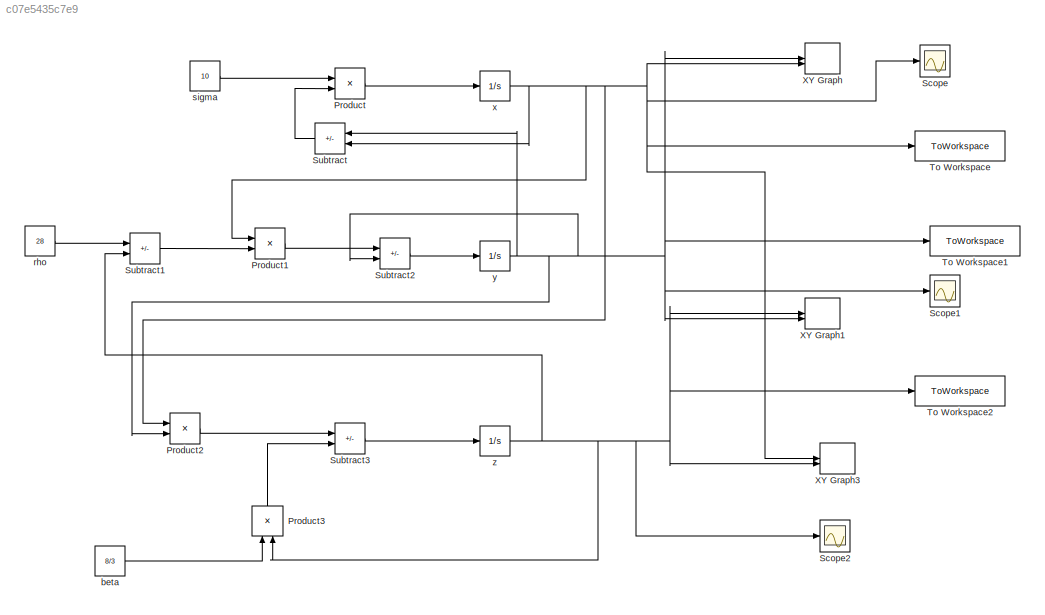
MODEL slx_c07e5435c7e9
KIND model
CONFIG AbsTol = auto
CONFIG EnableMultiTasking = off
CONFIG FixedStep = 0.001
CONFIG MaxStep = auto
CONFIG MinStep = auto
CONFIG RelTol = 1e-3
CONFIG SampleTimeConstraint = Unconstrained
CONFIG SolverName = FixedStepAuto
CONFIG StartTime = 0.0
CONFIG StopTime = 25.0
BLOCK [Product] Product
BLOCK [Product] Product1
BLOCK [Product] Product2
BLOCK [Product] Product3
  NameLocation = right
BLOCK [Scope] Scope
  Floating = off
  NumInputPorts = 1
  ScopeSpecificationString = Simulink.scopes.TimeScopeBlockCfg('CurrentConfiguration', extmgr.ConfigurationSet(extmgr.Configuration('Core','General UI',true),extmgr.Configuration('Core','Source UI',true),extmgr.Configuration('Sources','WiredSimulink',true),extmgr.Configuration('Visuals','Time Domain',true,'SerializedDisplays',{struct('MinYLimReal','-23.02709','MaxYLimReal','24.30224','YLabelReal','','MinYLimMag','0.00000','Ma...<+1327ch>
BLOCK [Scope] Scope1
  Floating = off
  NumInputPorts = 1
  ScopeSpecificationString = Simulink.scopes.TimeScopeBlockCfg('CurrentConfiguration', extmgr.ConfigurationSet(extmgr.Configuration('Core','General UI',true),extmgr.Configuration('Core','Source UI',true),extmgr.Configuration('Sources','WiredSimulink',true,'DataLoggingVariableName','ScopeData1'),extmgr.Configuration('Visuals','Time Domain',true,'SerializedDisplays',{struct('MinYLimReal','-31.2216','MaxYLimReal','33.67295','YLa...<+1364ch>
BLOCK [Scope] Scope2
  Floating = off
  NumInputPorts = 1
  ScopeSpecificationString = Simulink.scopes.TimeScopeBlockCfg('CurrentConfiguration', extmgr.ConfigurationSet(extmgr.Configuration('Core','General UI',true),extmgr.Configuration('Core','Source UI',true),extmgr.Configuration('Sources','WiredSimulink',true,'DataLoggingVariableName','ScopeData2'),extmgr.Configuration('Visuals','Time Domain',true,'SerializedDisplays',{struct('MinYLimReal','-4.89815','MaxYLimReal','53.70013','YLa...<+1364ch>
BLOCK [Sum] Subtract
  IconShape = rectangular
  Inputs = +-
  NameLocation = top
BLOCK [Sum] Subtract1
  IconShape = rectangular
  Inputs = +-
BLOCK [Sum] Subtract2
  IconShape = rectangular
  Inputs = +-
BLOCK [Sum] Subtract3
  IconShape = rectangular
  Inputs = +-
BLOCK [ToWorkspace] To Workspace
  FixptAsFi = on
  MaxDataPoints = inf
  SampleTime = -1
  VariableName = simout
BLOCK [ToWorkspace] To Workspace1
  FixptAsFi = on
  MaxDataPoints = inf
  SampleTime = -1
  VariableName = simout1
BLOCK [ToWorkspace] To Workspace2
  FixptAsFi = on
  MaxDataPoints = inf
  SampleTime = -1
  VariableName = simout2
BLOCK [Record] XY Graph
  CompatibilityTag = XY
  FileSettingsInternal = {"entries":[{"content":{"excelSettings":{"content":{},"type":"Streamout.ExcelSettings"}},"type":"Streamout.FileSettingStorage","uuid":"13992367-6df8-4872-bd32-34eabf95292b"}],"packageUris":["http://schema.mathworks.com/mf0/streamout_blocks/R2020a"],"version":"1.0"}
  Layout = [1 1]
  SignalsInternal = {"entries":[{"content":{"signals":[{"content":{"blockPath":["lista2_lorenzslx/XY Graph"],"channel":[],"dimensions":[1],"domain":"lista2_lorenzslx/XY Graph","lineColor":"#a2142f","plots":[1],"port":1,"sid":[""],"signalID":964,"signalName":"y"},"type":"RecordBlkView.Signal","uuid":"b91385a9-bdab-431e-ae58-12bcd1510d2c"},{"content":{"blockPath":["lista2_lorenzslx/XY Graph"],"channel":[],"dimensions":...<+381ch>
  VisualizationBindings = {"xyplotplugin":{"info":[{"series":[{"bindingParametersList":[{"parameter":"X-Axis","signalID":964,"signalName":"y"},{"parameter":"Y-Axis","signalID":968,"signalName":"x"}],"seriesID":43538}],"subplotID":1}]}}
BLOCK [Record] XY Graph1
  CompatibilityTag = XY
  FileSettingsInternal = {"entries":[{"content":{"excelSettings":{"content":{},"type":"Streamout.ExcelSettings"}},"type":"Streamout.FileSettingStorage","uuid":"a5b5386f-6187-4de5-89fa-c94a53f00e27"}],"packageUris":["http://schema.mathworks.com/mf0/streamout_blocks/R2020a"],"version":"1.0"}
  Layout = [1 1]
  SignalsInternal = {"entries":[{"content":{"signals":[{"content":{"blockPath":["lista2_lorenzslx/XY Graph1"],"channel":[],"dimensions":[1],"domain":"lista2_lorenzslx/XY Graph1","lineColor":"#a2142f","plots":[1],"port":1,"sid":[""],"signalID":972,"signalName":"z"},"type":"RecordBlkView.Signal","uuid":"de59c627-7218-433f-81bb-eecf63fc6559"},{"content":{"blockPath":["lista2_lorenzslx/XY Graph1"],"channel":[],"dimension...<+385ch>
  VisualizationBindings = {"xyplotplugin":{"info":[{"series":[{"bindingParametersList":[{"parameter":"X-Axis","signalID":972,"signalName":"z"},{"parameter":"Y-Axis","signalID":976,"signalName":"y"}],"seriesID":10459}],"subplotID":1}]}}
BLOCK [Record] XY Graph3
  CompatibilityTag = XY
  FileSettingsInternal = {"entries":[{"content":{"excelSettings":{"content":{},"type":"Streamout.ExcelSettings"}},"type":"Streamout.FileSettingStorage","uuid":"8b067cb2-b9e7-4c6e-a722-a4a4f1857175"}],"packageUris":["http://schema.mathworks.com/mf0/streamout_blocks/R2020a"],"version":"1.0"}
  Layout = [1 1]
  SignalsInternal = {"entries":[{"content":{"signals":[{"content":{"blockPath":["lista2_lorenzslx/XY Graph3"],"channel":[],"dimensions":[1],"domain":"lista2_lorenzslx/XY Graph3","lineColor":"#a2142f","plots":[1],"port":1,"sid":[""],"signalID":980,"signalName":"x"},"type":"RecordBlkView.Signal","uuid":"73cc697e-a626-4313-bea3-9904ef05703f"},{"content":{"blockPath":["lista2_lorenzslx/XY Graph3"],"channel":[],"dimension...<+385ch>
  VisualizationBindings = {"xyplotplugin":{"info":[{"series":[{"bindingParametersList":[{"parameter":"X-Axis","signalID":980,"signalName":"x"},{"parameter":"Y-Axis","signalID":984,"signalName":"z"}],"seriesID":2059}],"subplotID":1}]}}
BLOCK [Constant] beta
  Value = 8/3
BLOCK [Constant] rho
  Value = 28
BLOCK [Constant] sigma
  Value = 10
BLOCK [Integrator] x
  InitialCondition = 1
BLOCK [Integrator] y
  InitialCondition = 1
BLOCK [Integrator] z
  InitialCondition = 1
LINE Product1:1 -> Subtract2:1
LINE Product2:1 -> Subtract3:1
LINE Product3:1 -> Subtract3:2
LINE Product:1 -> x:1
LINE Subtract1:1 -> Product1:2
LINE Subtract2:1 -> y:1
LINE Subtract3:1 -> z:1
LINE Subtract:1 -> Product:2
LINE beta:1 -> Product3:1
LINE rho:1 -> Subtract1:1
LINE sigma:1 -> Product:1
NET x:1 -> Product1:1, Product2:1, Scope:1, Subtract:2, To Workspace:1, XY Graph3:1, XY Graph:2
NET y:1 -> Product2:2, Scope1:1, Subtract2:2, Subtract:1, To Workspace1:1, XY Graph1:2, XY Graph:1
NET z:1 -> Product3:2, Scope2:1, Subtract1:2, To Workspace2:1, XY Graph1:1, XY Graph3:2
note: NET lines group one-source signal fan-out (src -> all destinations, sorted); 1:1 wires keep LINE
